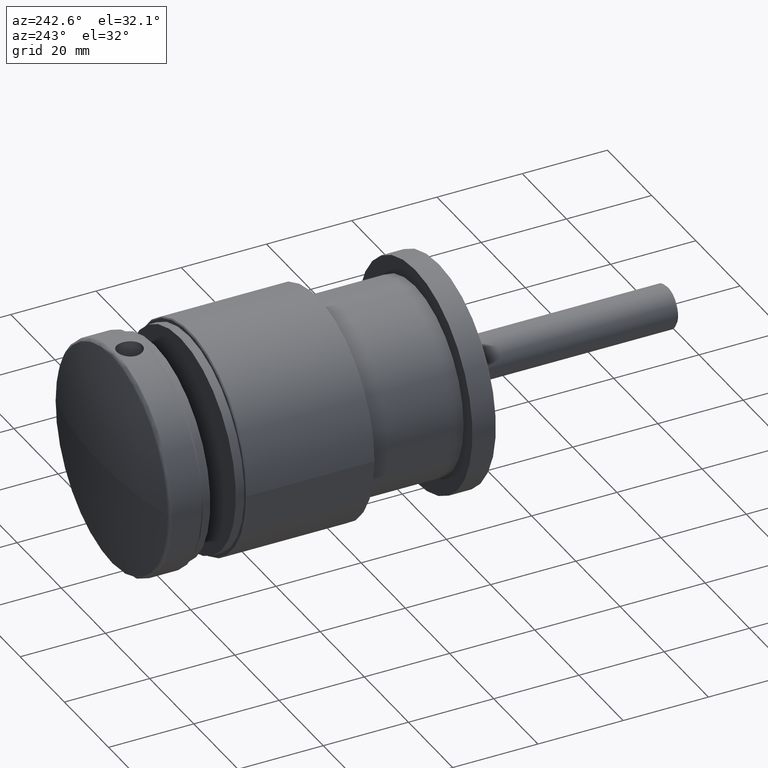
[diagram: clean part render]
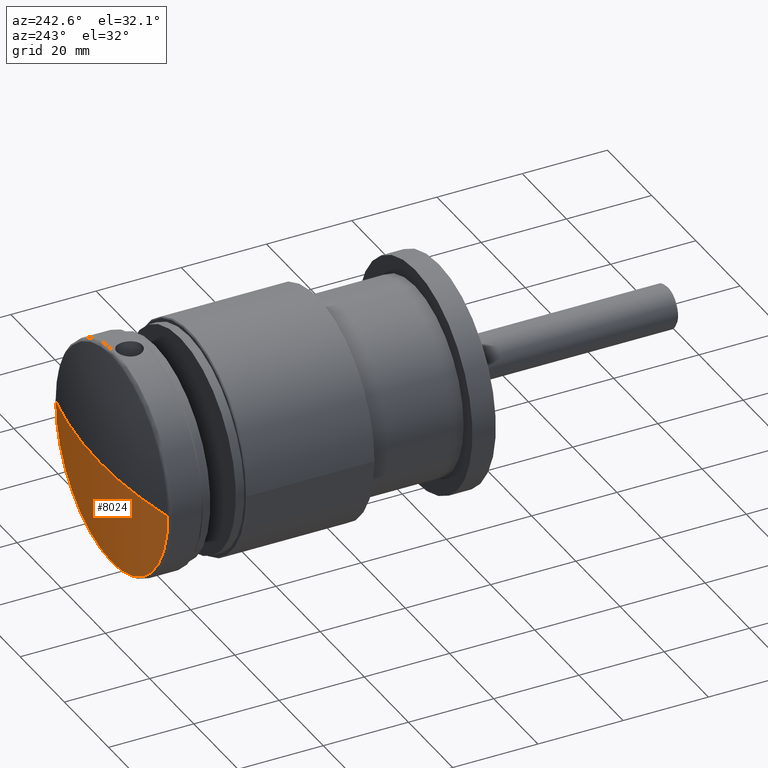
[diagram: same view with one face highlighted and labeled with its STEP entity id]
A machine part, auxiliary view. The second image highlights one B-rep face of the part: STEP entity #8024.
In plain terms, the highlighted spherical surface has radius 114.167 mm.
Its self-contained STEP definition (entity closure, byte-faithful):
#18 = CARTESIAN_POINT ( 'NONE',  ( -6.990692145132840639E-15, 10.99999999999999645, 0.000000000000000000 ) ) ;
#501 = DIRECTION ( 'NONE',  ( -1.224646799147353207E-16, 0.000000000000000000, -1.000000000000000000 ) ) ;
#1720 = AXIS2_PLACEMENT_3D ( 'NONE', #25371, #4290, #25038 ) ;
#4290 = DIRECTION ( 'NONE',  ( -0.000000000000000000, -1.000000000000000000, -0.000000000000000000 ) ) ;
#4423 = CARTESIAN_POINT ( 'NONE',  ( 0.000000000000000000, -103.1666666666672114, 0.000000000000000000 ) ) ;
#4647 = EDGE_CURVE ( 'NONE', #10858, #13059, #28050, .T. ) ;
#4683 = SPHERICAL_SURFACE ( 'NONE', #9682, 114.1666666666672114 ) ;
#7052 = AXIS2_PLACEMENT_3D ( 'NONE', #29446, #501, #24308 ) ;
#8024 = ADVANCED_FACE ( 'NONE', ( #22206 ), #4683, .T. ) ;
#9682 = AXIS2_PLACEMENT_3D ( 'NONE', #10831, #31582, #26105 ) ;
#10831 = CARTESIAN_POINT ( 'NONE',  ( 0.000000000000000000, -103.1666666666672114, 0.000000000000000000 ) ) ;
#10858 = VERTEX_POINT ( 'NONE', #25758 ) ;
#11642 = CIRCLE ( 'NONE', #26125, 114.1666666666672114 ) ;
#11948 = EDGE_LOOP ( 'NONE', ( #15743, #23726, #32706, #14687 ) ) ;
#11980 = CARTESIAN_POINT ( 'NONE',  ( 0.000000000000000000, 8.143681099081700125, 0.000000000000000000 ) ) ;
#12076 = AXIS2_PLACEMENT_3D ( 'NONE', #11980, #22367, #30348 ) ;
#13059 = VERTEX_POINT ( 'NONE', #30018 ) ;
#13846 = CIRCLE ( 'NONE', #1720, 25.37783004998530245 ) ;
#14687 = ORIENTED_EDGE ( 'NONE', *, *, #4647, .F. ) ;
#14992 = EDGE_CURVE ( 'NONE', #13059, #23270, #13846, .T. ) ;
#15743 = ORIENTED_EDGE ( 'NONE', *, *, #32063, .F. ) ;
#17124 = CIRCLE ( 'NONE', #7052, 114.1666666666672114 ) ;
#18436 = VERTEX_POINT ( 'NONE', #18 ) ;
#21357 = CARTESIAN_POINT ( 'NONE',  ( 25.37783004998530245, 8.143681099081700125, -3.107887834002001119E-15 ) ) ;
#22206 = FACE_OUTER_BOUND ( 'NONE', #11948, .T. ) ;
#22367 = DIRECTION ( 'NONE',  ( -0.000000000000000000, -1.000000000000000000, -0.000000000000000000 ) ) ;
#23270 = VERTEX_POINT ( 'NONE', #21357 ) ;
#23726 = ORIENTED_EDGE ( 'NONE', *, *, #24818, .T. ) ;
#24308 = DIRECTION ( 'NONE',  ( -1.000000000000000000, 0.000000000000000000, 1.224646799147353207E-16 ) ) ;
#24818 = EDGE_CURVE ( 'NONE', #18436, #23270, #17124, .T. ) ;
#25038 = DIRECTION ( 'NONE',  ( 0.000000000000000000, 0.000000000000000000, -1.000000000000000000 ) ) ;
#25277 = DIRECTION ( 'NONE',  ( 1.000000000000000000, 0.000000000000000000, 0.000000000000000000 ) ) ;
#25371 = CARTESIAN_POINT ( 'NONE',  ( 0.000000000000000000, 8.143681099081700125, 0.000000000000000000 ) ) ;
#25758 = CARTESIAN_POINT ( 'NONE',  ( -25.37783004998530245, 8.143681099081700125, 0.000000000000000000 ) ) ;
#26105 = DIRECTION ( 'NONE',  ( -1.000000000000000000, 0.000000000000000000, 0.000000000000000000 ) ) ;
#26125 = AXIS2_PLACEMENT_3D ( 'NONE', #4423, #33284, #25277 ) ;
#28050 = CIRCLE ( 'NONE', #12076, 25.37783004998530245 ) ;
#29446 = CARTESIAN_POINT ( 'NONE',  ( 0.000000000000000000, -103.1666666666672114, 0.000000000000000000 ) ) ;
#30018 = CARTESIAN_POINT ( 'NONE',  ( 0.000000000000000000, 8.143681099081700125, -25.37783004998530600 ) ) ;
#30348 = DIRECTION ( 'NONE',  ( 0.000000000000000000, 0.000000000000000000, -1.000000000000000000 ) ) ;
#31582 = DIRECTION ( 'NONE',  ( -0.000000000000000000, -0.000000000000000000, -1.000000000000000000 ) ) ;
#32063 = EDGE_CURVE ( 'NONE', #18436, #10858, #11642, .T. ) ;
#32706 = ORIENTED_EDGE ( 'NONE', *, *, #14992, .F. ) ;
#33284 = DIRECTION ( 'NONE',  ( -0.000000000000000000, 0.000000000000000000, 1.000000000000000000 ) ) ;